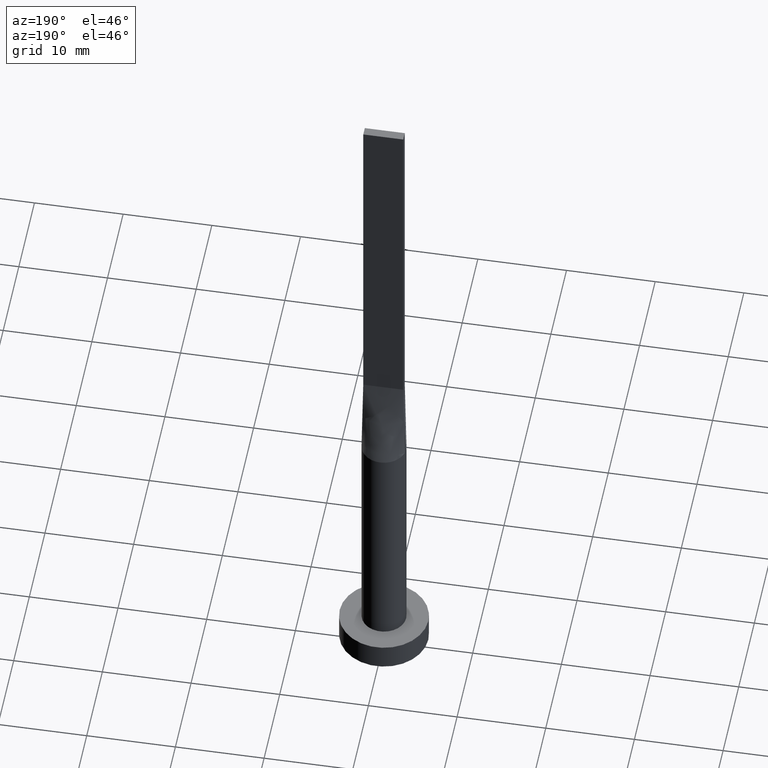
[diagram: clean part render]
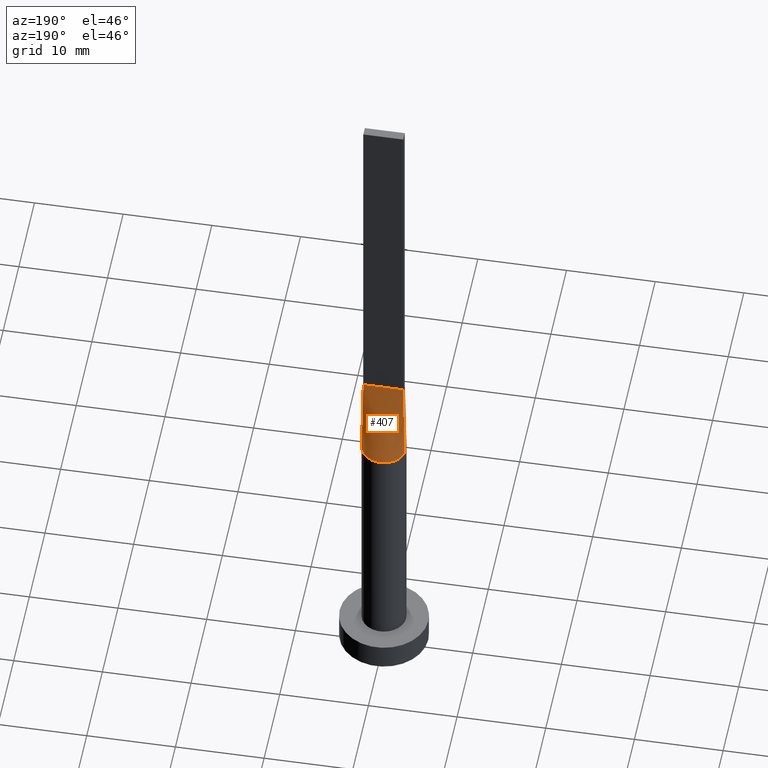
[diagram: same view with one face highlighted and labeled with its STEP entity id]
A machine part, auxiliary view. The second image highlights one B-rep face of the part: STEP entity #407.
In plain terms, the highlighted face is a freeform B-spline surface patch.
Its self-contained STEP definition (entity closure, byte-faithful):
#4 = CARTESIAN_POINT ( 'NONE',  ( -0.6674771052374470770, 2.430579781493059421, 29.99999999999998934 ) ) ;
#10 = CARTESIAN_POINT ( 'NONE',  ( 1.935644909179608186, 1.608159499248285051, 29.99999999999999645 ) ) ;
#13 = B_SPLINE_SURFACE_WITH_KNOTS ( 'NONE', 3, 1, ( 
 ( #267, #364 ),
 ( #280, #42 ),
 ( #459, #553 ),
 ( #53, #557 ),
 ( #10, #230 ),
 ( #374, #182 ),
 ( #236, #334 ),
 ( #335, #141 ),
 ( #225, #421 ),
 ( #48, #326 ),
 ( #516, #551 ),
 ( #414, #463 ),
 ( #189, #424 ),
 ( #93, #470 ),
 ( #180, #372 ),
 ( #137, #15 ),
 ( #418, #86 ),
 ( #550, #57 ) ),
 .UNSPECIFIED., .F., .F., .F.,
 ( 4, 2, 2, 2, 2, 2, 2, 2, 4 ),
 ( 2, 2 ),
 ( 0.000000000000000000, 0.1249999999999999722, 0.2500000000000000000, 0.3750000000000000000, 0.5000000000000001110, 0.6250000000000001110, 0.7500000000000000000, 0.8750000000000000000, 1.000000000000000000 ),
 ( 0.000000000000000000, 1.000000000000000000 ),
 .UNSPECIFIED. ) ;
#15 = CARTESIAN_POINT ( 'NONE',  ( -1.875000000000003775, 0.5000000000000002220, 39.99999999999999289 ) ) ;
#19 = DIRECTION ( 'NONE',  ( -1.000000000000000000, -0.000000000000000000, -0.000000000000000000 ) ) ;
#28 = VERTEX_POINT ( 'NONE', #508 ) ;
#42 = CARTESIAN_POINT ( 'NONE',  ( 2.062499999999996891, 0.5000000000000002220, 39.99999999999999289 ) ) ;
#48 = CARTESIAN_POINT ( 'NONE',  ( -0.3342381693191151526, 2.499999999999999556, 30.00000000000000355 ) ) ;
#53 = CARTESIAN_POINT ( 'NONE',  ( 2.093723281432890104, 1.388001797188529007, 29.99999999999998934 ) ) ;
#57 = CARTESIAN_POINT ( 'NONE',  ( -2.249999999999999556, 0.5000000000000002220, 40.00000000000000000 ) ) ;
#66 = DIRECTION ( 'NONE',  ( 0.01904314058352523514, -0.004231809018561030755, 0.9998097071888962795 ) ) ;
#75 = LINE ( 'NONE', #441, #224 ) ;
#78 = CARTESIAN_POINT ( 'NONE',  ( 1.935644909179608186, 1.608159499248285051, 29.99999999999999645 ) ) ;
#84 = CARTESIAN_POINT ( 'NONE',  ( -1.935644909179609297, 1.608159499248285718, 30.00000000000001066 ) ) ;
#86 = CARTESIAN_POINT ( 'NONE',  ( -2.062500000000001776, 0.5000000000000002220, 39.99999999999999289 ) ) ;
#93 = CARTESIAN_POINT ( 'NONE',  ( -1.935644909179609297, 1.608159499248285718, 30.00000000000001066 ) ) ;
#98 = VECTOR ( 'NONE', #356, 1000.000000000000000 ) ;
#107 = ORIENTED_EDGE ( 'NONE', *, *, #250, .F. ) ;
#110 = CARTESIAN_POINT ( 'NONE',  ( 2.249999999999999556, 0.5000000000000002220, 40.00000000000000000 ) ) ;
#118 = CARTESIAN_POINT ( 'NONE',  ( 2.345233825229940283, 0.5211630722733202603, 35.00000000000000000 ) ) ;
#121 = ORIENTED_EDGE ( 'NONE', *, *, #309, .T. ) ;
#125 = CARTESIAN_POINT ( 'NONE',  ( 2.440676307083422980, 0.5423728264510006003, 30.00000000000000000 ) ) ;
#128 = CARTESIAN_POINT ( 'NONE',  ( -1.519400572660313253, 2.006070808634367264, 30.00000000000001421 ) ) ;
#137 = CARTESIAN_POINT ( 'NONE',  ( -2.323660390030918510, 0.9543733860570832173, 30.00000000000000000 ) ) ;
#141 = CARTESIAN_POINT ( 'NONE',  ( 0.3749999999999862332, 0.5000000000000002220, 39.99999999999999289 ) ) ;
#153 = LINE ( 'NONE', #487, #559 ) ;
#167 = CARTESIAN_POINT ( 'NONE',  ( -2.093723281432891437, 1.388001797188529451, 30.00000000000000000 ) ) ;
#169 = FACE_OUTER_BOUND ( 'NONE', #378, .T. ) ;
#174 = EDGE_CURVE ( 'NONE', #446, #200, #394, .T. ) ;
#180 = CARTESIAN_POINT ( 'NONE',  ( -2.093723281432891437, 1.388001797188529451, 30.00000000000000000 ) ) ;
#182 = CARTESIAN_POINT ( 'NONE',  ( 0.9374999999999878986, 0.5000000000000002220, 39.99999999999999289 ) ) ;
#189 = CARTESIAN_POINT ( 'NONE',  ( -1.519400572660313253, 2.006070808634367264, 30.00000000000001421 ) ) ;
#200 = VERTEX_POINT ( 'NONE', #110 ) ;
#214 = CARTESIAN_POINT ( 'NONE',  ( 0.3342381693191150416, 2.499999999999999556, 30.00000000000000355 ) ) ;
#218 = CARTESIAN_POINT ( 'NONE',  ( -2.396350003401058082, 0.7408555563113466969, 30.00000000000000000 ) ) ;
#224 = VECTOR ( 'NONE', #19, 1000.000000000000000 ) ;
#225 = CARTESIAN_POINT ( 'NONE',  ( 0.3342381693191150416, 2.499999999999999556, 30.00000000000000355 ) ) ;
#230 = CARTESIAN_POINT ( 'NONE',  ( 1.312499999999990230, 0.5000000000000002220, 39.99999999999999289 ) ) ;
#236 = CARTESIAN_POINT ( 'NONE',  ( 1.260416918790968843, 2.182794756967427752, 29.99999999999999645 ) ) ;
#250 = EDGE_CURVE ( 'NONE', #200, #28, #75, .T. ) ;
#262 = CARTESIAN_POINT ( 'NONE',  ( 1.519400572660313031, 2.006070808634367708, 30.00000000000000000 ) ) ;
#267 = CARTESIAN_POINT ( 'NONE',  ( 2.440467650459881899, 0.5423261445466406316, 30.00000000000000000 ) ) ;
#273 = B_SPLINE_CURVE_WITH_KNOTS ( 'NONE', 3,
 ( #125, #322, #362, #315, #78, #262, #507, #579, #214, #405, #4, #320, #128, #84, #167, #502, #218, #408 ),
 .UNSPECIFIED., .F., .F.,
 ( 4, 2, 2, 2, 2, 2, 2, 2, 4 ),
 ( 0.000000000000000000, 0.1249999999999999722, 0.2500000000000000000, 0.3750000000000000000, 0.5000000000000001110, 0.6250000000000001110, 0.7500000000000000000, 0.8750000000000000000, 1.000000000000000000 ),
 .UNSPECIFIED. ) ;
#280 = CARTESIAN_POINT ( 'NONE',  ( 2.396350003401058526, 0.7408555563113465858, 30.00000000000000355 ) ) ;
#309 = EDGE_CURVE ( 'NONE', #357, #28, #153, .T. ) ;
#315 = CARTESIAN_POINT ( 'NONE',  ( 2.093723281432890104, 1.388001797188529007, 29.99999999999998934 ) ) ;
#320 = CARTESIAN_POINT ( 'NONE',  ( -1.260416918790968843, 2.182794756967428196, 29.99999999999999289 ) ) ;
#322 = CARTESIAN_POINT ( 'NONE',  ( 2.396350003401058526, 0.7408555563113465858, 30.00000000000000355 ) ) ;
#326 = CARTESIAN_POINT ( 'NONE',  ( -0.1875000000000140443, 0.5000000000000002220, 39.99999999999999289 ) ) ;
#332 = CARTESIAN_POINT ( 'NONE',  ( 2.440676307083422980, 0.5423728264510006003, 30.00000000000000000 ) ) ;
#334 = CARTESIAN_POINT ( 'NONE',  ( 0.7499999999999872324, 0.5000000000000002220, 39.99999999999999289 ) ) ;
#335 = CARTESIAN_POINT ( 'NONE',  ( 0.6674771052374470770, 2.430579781493058977, 29.99999999999998224 ) ) ;
#356 = DIRECTION ( 'NONE',  ( -0.01904314058352519351, -0.004231809018561117491, 0.9998097071888962795 ) ) ;
#357 = VERTEX_POINT ( 'NONE', #457 ) ;
#362 = CARTESIAN_POINT ( 'NONE',  ( 2.323660390030918954, 0.9543733860570833283, 30.00000000000000711 ) ) ;
#364 = CARTESIAN_POINT ( 'NONE',  ( 2.249999999999999556, 0.5000000000000002220, 40.00000000000000000 ) ) ;
#372 = CARTESIAN_POINT ( 'NONE',  ( -1.500000000000007327, 0.5000000000000002220, 39.99999999999999289 ) ) ;
#374 = CARTESIAN_POINT ( 'NONE',  ( 1.519400572660313031, 2.006070808634367708, 30.00000000000000000 ) ) ;
#378 = EDGE_LOOP ( 'NONE', ( #567, #121, #107, #570 ) ) ;
#394 = LINE ( 'NONE', #118, #98 ) ;
#400 = EDGE_CURVE ( 'NONE', #446, #357, #273, .T. ) ;
#405 = CARTESIAN_POINT ( 'NONE',  ( -0.3342381693191151526, 2.499999999999999556, 30.00000000000000355 ) ) ;
#407 = ADVANCED_FACE ( 'NONE', ( #169 ), #13, .T. ) ;
#408 = CARTESIAN_POINT ( 'NONE',  ( -2.440694335308545071, 0.5423767520433731004, 30.00000000000000000 ) ) ;
#414 = CARTESIAN_POINT ( 'NONE',  ( -1.260416918790968843, 2.182794756967428196, 29.99999999999999289 ) ) ;
#418 = CARTESIAN_POINT ( 'NONE',  ( -2.396350003401058082, 0.7408555563113466969, 30.00000000000000000 ) ) ;
#421 = CARTESIAN_POINT ( 'NONE',  ( 0.1874999999999860112, 0.5000000000000002220, 40.00000000000000000 ) ) ;
#424 = CARTESIAN_POINT ( 'NONE',  ( -0.9375000000000114353, 0.5000000000000002220, 39.99999999999999289 ) ) ;
#441 = CARTESIAN_POINT ( 'NONE',  ( -2.249999999999999556, 0.5000000000000002220, 40.00000000000000000 ) ) ;
#446 = VERTEX_POINT ( 'NONE', #332 ) ;
#457 = CARTESIAN_POINT ( 'NONE',  ( -2.440694335308545071, 0.5423767520433731004, 30.00000000000000000 ) ) ;
#459 = CARTESIAN_POINT ( 'NONE',  ( 2.323660390030918954, 0.9543733860570833283, 30.00000000000000711 ) ) ;
#463 = CARTESIAN_POINT ( 'NONE',  ( -0.7500000000000124345, 0.5000000000000002220, 39.99999999999999289 ) ) ;
#470 = CARTESIAN_POINT ( 'NONE',  ( -1.312500000000008660, 0.5000000000000002220, 39.99999999999999289 ) ) ;
#487 = CARTESIAN_POINT ( 'NONE',  ( -2.345233825229940727, 0.5211630722733198162, 35.00000000000000000 ) ) ;
#502 = CARTESIAN_POINT ( 'NONE',  ( -2.323660390030918510, 0.9543733860570832173, 30.00000000000000000 ) ) ;
#507 = CARTESIAN_POINT ( 'NONE',  ( 1.260416918790968843, 2.182794756967427752, 29.99999999999999645 ) ) ;
#508 = CARTESIAN_POINT ( 'NONE',  ( -2.249999999999999556, 0.5000000000000002220, 40.00000000000000000 ) ) ;
#516 = CARTESIAN_POINT ( 'NONE',  ( -0.6674771052374470770, 2.430579781493059421, 29.99999999999998934 ) ) ;
#550 = CARTESIAN_POINT ( 'NONE',  ( -2.440467650459882343, 0.5423261445466395214, 30.00000000000000000 ) ) ;
#551 = CARTESIAN_POINT ( 'NONE',  ( -0.3750000000000138223, 0.5000000000000002220, 39.99999999999999289 ) ) ;
#553 = CARTESIAN_POINT ( 'NONE',  ( 1.874999999999995115, 0.5000000000000002220, 39.99999999999999289 ) ) ;
#557 = CARTESIAN_POINT ( 'NONE',  ( 1.499999999999991784, 0.5000000000000002220, 39.99999999999999289 ) ) ;
#559 = VECTOR ( 'NONE', #66, 1000.000000000000000 ) ;
#567 = ORIENTED_EDGE ( 'NONE', *, *, #400, .T. ) ;
#570 = ORIENTED_EDGE ( 'NONE', *, *, #174, .F. ) ;
#579 = CARTESIAN_POINT ( 'NONE',  ( 0.6674771052374470770, 2.430579781493058977, 29.99999999999998224 ) ) ;